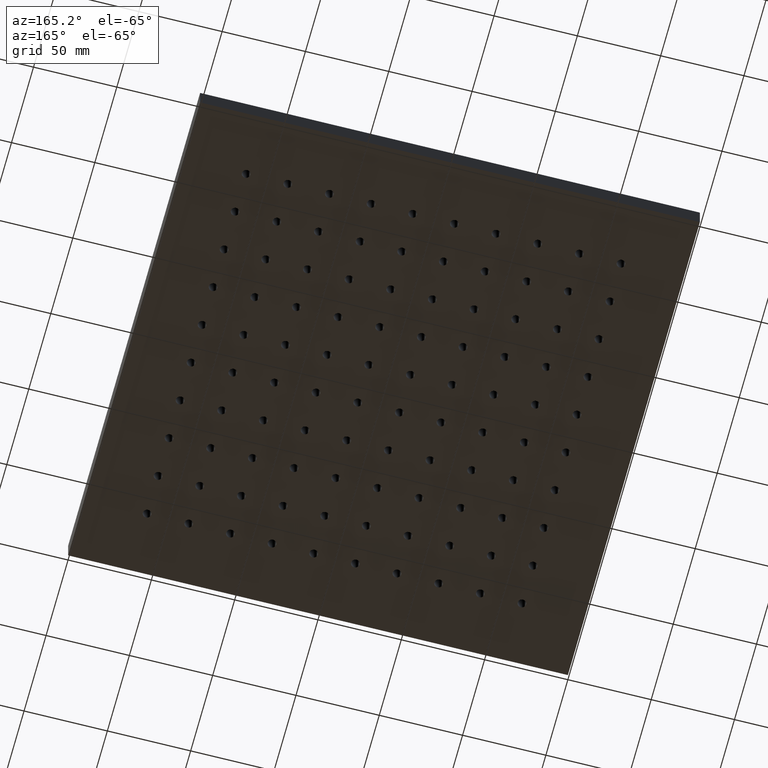
[diagram: clean part render]
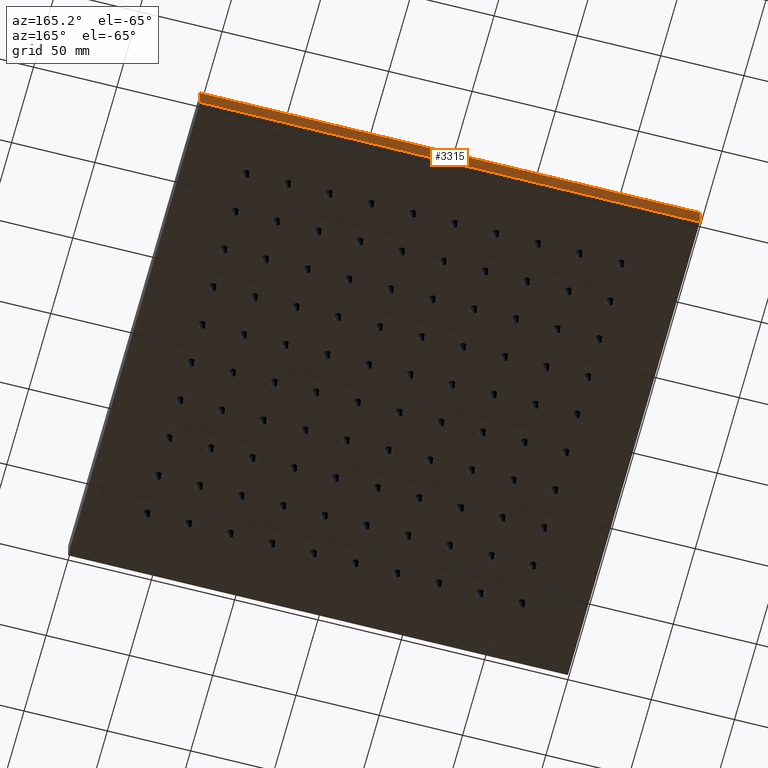
[diagram: same view with one face highlighted and labeled with its STEP entity id]
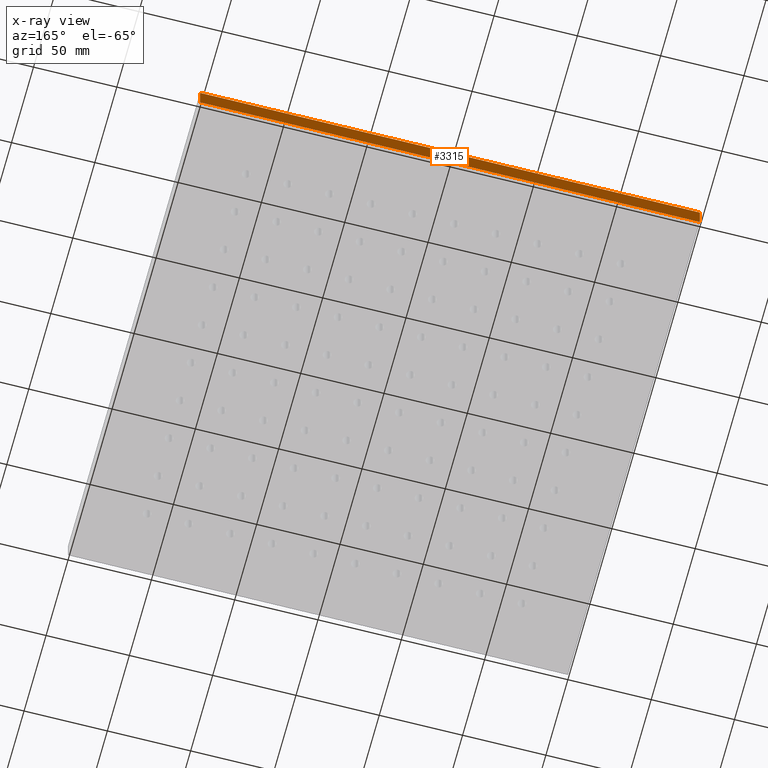
[diagram: x-ray of the same camera — body ghosted, the highlighted face saturated]
A machine part, auxiliary view. The second image highlights one B-rep face of the part: STEP entity #3315.
The next image is the same camera in x-ray: the body ghosted, the highlighted face saturated — about 0% of this face is hidden behind the body in this view.
In plain terms, the highlighted planar face has unit normal (0, -1, 0).
Its self-contained STEP definition (entity closure, byte-faithful):
#71 = DIRECTION ( 'NONE',  ( -1.000000000000000000, -0.0000000000000000000, -0.0000000000000000000 ) ) ;
#98 = AXIS2_PLACEMENT_3D ( 'NONE', #2830, #1089, #5196 ) ;
#356 = VECTOR ( 'NONE', #6034, 1000.000000000000000 ) ;
#500 = PLANE ( 'NONE',  #98 ) ;
#941 = ORIENTED_EDGE ( 'NONE', *, *, #5465, .T. ) ;
#1089 = DIRECTION ( 'NONE',  ( 0.0000000000000000000, -1.000000000000000000, 0.0000000000000000000 ) ) ;
#1231 = CARTESIAN_POINT ( 'NONE',  ( -150.0000000000000000, 149.9999999999999700, 0.0000000000000000000 ) ) ;
#1300 = LINE ( 'NONE', #3442, #7137 ) ;
#1642 = EDGE_CURVE ( 'NONE', #2351, #4884, #5036, .T. ) ;
#1729 = VECTOR ( 'NONE', #71, 1000.000000000000000 ) ;
#2351 = VERTEX_POINT ( 'NONE', #4472 ) ;
#2499 = VERTEX_POINT ( 'NONE', #3452 ) ;
#2533 = ORIENTED_EDGE ( 'NONE', *, *, #1642, .F. ) ;
#2830 = CARTESIAN_POINT ( 'NONE',  ( -150.0000000000000000, 149.9999999999999700, 13.00000000000000000 ) ) ;
#2842 = EDGE_CURVE ( 'NONE', #2499, #3996, #1300, .T. ) ;
#3315 = ADVANCED_FACE ( 'NONE', ( #4588 ), #500, .F. ) ;
#3442 = CARTESIAN_POINT ( 'NONE',  ( 150.0000000000000000, 149.9999999999999700, 13.00000000000000000 ) ) ;
#3452 = CARTESIAN_POINT ( 'NONE',  ( 150.0000000000000000, 149.9999999999999700, 13.00000000000000000 ) ) ;
#3867 = VECTOR ( 'NONE', #6621, 1000.000000000000000 ) ;
#3897 = ORIENTED_EDGE ( 'NONE', *, *, #2842, .T. ) ;
#3996 = VERTEX_POINT ( 'NONE', #6270 ) ;
#4173 = CARTESIAN_POINT ( 'NONE',  ( -150.0000000000000000, 149.9999999999999700, 0.0000000000000000000 ) ) ;
#4472 = CARTESIAN_POINT ( 'NONE',  ( -150.0000000000000000, 149.9999999999999700, 13.00000000000000000 ) ) ;
#4588 = FACE_OUTER_BOUND ( 'NONE', #5435, .T. ) ;
#4843 = LINE ( 'NONE', #4173, #1729 ) ;
#4851 = CARTESIAN_POINT ( 'NONE',  ( -150.0000000000000000, 149.9999999999999700, 13.00000000000000000 ) ) ;
#4884 = VERTEX_POINT ( 'NONE', #1231 ) ;
#5026 = EDGE_CURVE ( 'NONE', #2499, #2351, #6977, .T. ) ;
#5036 = LINE ( 'NONE', #4851, #356 ) ;
#5196 = DIRECTION ( 'NONE',  ( 0.0000000000000000000, -0.0000000000000000000, -1.000000000000000000 ) ) ;
#5435 = EDGE_LOOP ( 'NONE', ( #941, #2533, #5747, #3897 ) ) ;
#5451 = CARTESIAN_POINT ( 'NONE',  ( -150.0000000000000000, 149.9999999999999700, 13.00000000000000000 ) ) ;
#5465 = EDGE_CURVE ( 'NONE', #3996, #4884, #4843, .T. ) ;
#5747 = ORIENTED_EDGE ( 'NONE', *, *, #5026, .F. ) ;
#6034 = DIRECTION ( 'NONE',  ( -0.0000000000000000000, -0.0000000000000000000, -1.000000000000000000 ) ) ;
#6270 = CARTESIAN_POINT ( 'NONE',  ( 150.0000000000000000, 149.9999999999999700, 0.0000000000000000000 ) ) ;
#6621 = DIRECTION ( 'NONE',  ( -1.000000000000000000, -0.0000000000000000000, -0.0000000000000000000 ) ) ;
#6977 = LINE ( 'NONE', #5451, #3867 ) ;
#7137 = VECTOR ( 'NONE', #7527, 1000.000000000000000 ) ;
#7527 = DIRECTION ( 'NONE',  ( -0.0000000000000000000, -0.0000000000000000000, -1.000000000000000000 ) ) ;